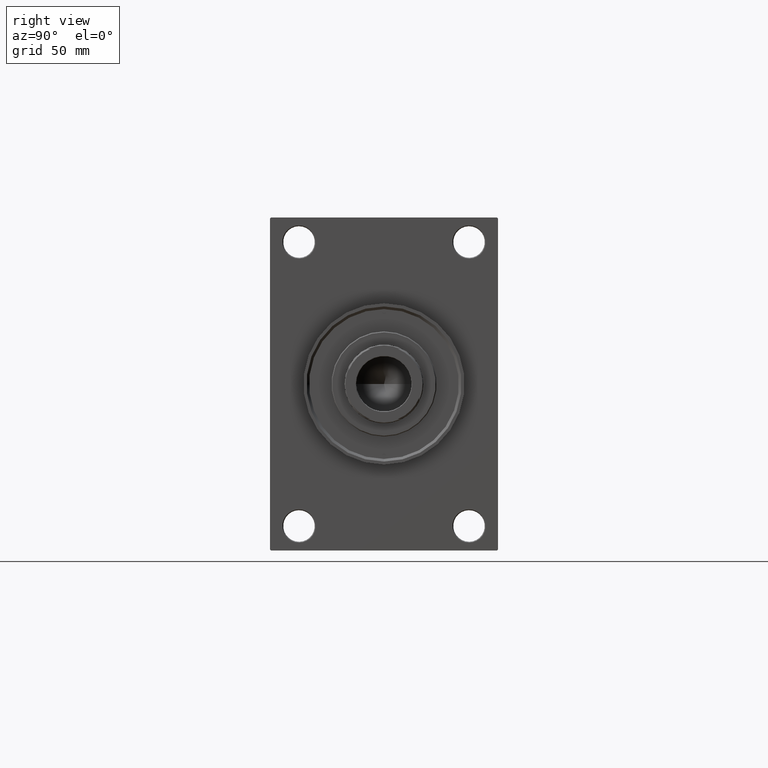
[diagram: clean part render]
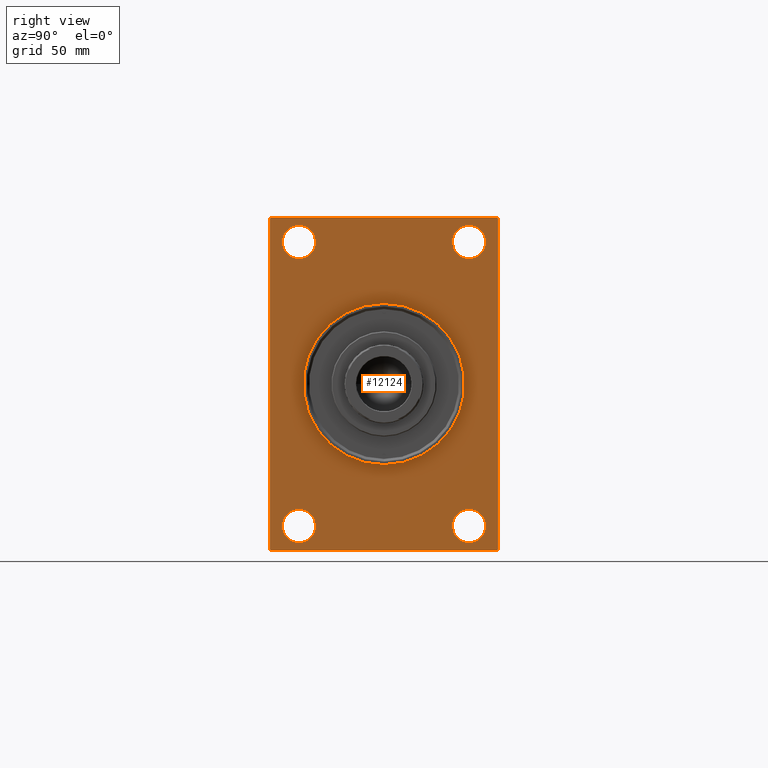
[diagram: same view with one face highlighted and labeled with its STEP entity id]
A machine part, right view. The second image highlights one B-rep face of the part: STEP entity #12124.
In plain terms, the highlighted planar face has unit normal (-1, 0, 0).
Its self-contained STEP definition (entity closure, byte-faithful):
#583 = EDGE_LOOP ( 'NONE', ( #40178, #6443, #46130, #1382, #5344, #7250, #45033, #41838 ) ) ;
#848 = VERTEX_POINT ( 'NONE', #24408 ) ;
#945 = DIRECTION ( 'NONE',  ( 0.000000000000000000, 0.000000000000000000, -1.000000000000000000 ) ) ;
#1382 = ORIENTED_EDGE ( 'NONE', *, *, #13155, .T. ) ;
#1439 = VERTEX_POINT ( 'NONE', #19240 ) ;
#1833 = CARTESIAN_POINT ( 'NONE',  ( 270.9999999999999432, -64.50000000000001421, -95.00000000000002842 ) ) ;
#1886 = CARTESIAN_POINT ( 'NONE',  ( 270.9999999999999432, 64.50000000000002842, 94.99999999999997158 ) ) ;
#1963 = CARTESIAN_POINT ( 'NONE',  ( 270.9999999999999432, -65.00000000000001421, -94.50000000000002842 ) ) ;
#2142 = AXIS2_PLACEMENT_3D ( 'NONE', #36860, #43428, #32505 ) ;
#2464 = CARTESIAN_POINT ( 'NONE',  ( 270.9999999999999432, 64.99999999999997158, 94.99999999999997158 ) ) ;
#2803 = EDGE_CURVE ( 'NONE', #15274, #1439, #11931, .T. ) ;
#2850 = EDGE_CURVE ( 'NONE', #848, #14485, #23918, .T. ) ;
#2956 = CARTESIAN_POINT ( 'NONE',  ( 270.9999999999999432, 48.50000000000000711, 90.49999999999990052 ) ) ;
#3544 = EDGE_LOOP ( 'NONE', ( #24941, #30678 ) ) ;
#3581 = DIRECTION ( 'NONE',  ( -1.000000000000000000, 0.000000000000000000, -0.000000000000000000 ) ) ;
#3598 = EDGE_CURVE ( 'NONE', #44810, #15594, #9250, .T. ) ;
#3735 = DIRECTION ( 'NONE',  ( 0.000000000000000000, 7.304098846218135653E-17, -1.000000000000000000 ) ) ;
#3815 = EDGE_LOOP ( 'NONE', ( #44579, #4313 ) ) ;
#4313 = ORIENTED_EDGE ( 'NONE', *, *, #12726, .T. ) ;
#4329 = VERTEX_POINT ( 'NONE', #4406 ) ;
#4406 = CARTESIAN_POINT ( 'NONE',  ( 270.9999999999999432, -48.49999999999999289, -71.50000000000011369 ) ) ;
#4637 = CARTESIAN_POINT ( 'NONE',  ( 270.9999999999999432, -64.50000000000001421, -95.00000000000002842 ) ) ;
#4922 = DIRECTION ( 'NONE',  ( -1.000000000000000000, 0.000000000000000000, -0.000000000000000000 ) ) ;
#4985 = DIRECTION ( 'NONE',  ( 0.000000000000000000, 0.000000000000000000, 1.000000000000000000 ) ) ;
#5034 = AXIS2_PLACEMENT_3D ( 'NONE', #31219, #23710, #19621 ) ;
#5239 = CIRCLE ( 'NONE', #6006, 9.499999999999896971 ) ;
#5341 = FACE_BOUND ( 'NONE', #3815, .T. ) ;
#5344 = ORIENTED_EDGE ( 'NONE', *, *, #2803, .F. ) ;
#5577 = EDGE_CURVE ( 'NONE', #25901, #25853, #38002, .T. ) ;
#5594 = LINE ( 'NONE', #27845, #47594 ) ;
#6006 = AXIS2_PLACEMENT_3D ( 'NONE', #29695, #3581, #29212 ) ;
#6045 = CARTESIAN_POINT ( 'NONE',  ( 270.9999999999999432, 48.50000000000000711, -71.50000000000011369 ) ) ;
#6443 = ORIENTED_EDGE ( 'NONE', *, *, #12227, .T. ) ;
#6663 = CIRCLE ( 'NONE', #15930, 9.499999999999896971 ) ;
#7149 = ORIENTED_EDGE ( 'NONE', *, *, #35636, .T. ) ;
#7250 = ORIENTED_EDGE ( 'NONE', *, *, #16546, .T. ) ;
#7435 = DIRECTION ( 'NONE',  ( -1.000000000000000000, 0.000000000000000000, -0.000000000000000000 ) ) ;
#7444 = CARTESIAN_POINT ( 'NONE',  ( 270.9999999999999432, 0.000000000000000000, 46.00000000000000000 ) ) ;
#7753 = CARTESIAN_POINT ( 'NONE',  ( 270.9999999999999432, 5.633375276077824704E-15, -46.00000000000000000 ) ) ;
#8070 = CARTESIAN_POINT ( 'NONE',  ( 270.9999999999999432, 64.99999999999997158, 94.99999999999997158 ) ) ;
#8261 = FACE_BOUND ( 'NONE', #15579, .T. ) ;
#8501 = FACE_OUTER_BOUND ( 'NONE', #583, .T. ) ;
#8578 = CARTESIAN_POINT ( 'NONE',  ( 270.9999999999999432, 64.99999999999998579, -95.00000000000001421 ) ) ;
#8771 = LINE ( 'NONE', #45570, #31517 ) ;
#9050 = ORIENTED_EDGE ( 'NONE', *, *, #45094, .F. ) ;
#9250 = CIRCLE ( 'NONE', #45650, 9.499999999999896971 ) ;
#9429 = AXIS2_PLACEMENT_3D ( 'NONE', #28712, #13711, #31862 ) ;
#9513 = CARTESIAN_POINT ( 'NONE',  ( 270.9999999999999432, 48.50000000000000711, 81.00000000000000000 ) ) ;
#10104 = EDGE_CURVE ( 'NONE', #4329, #31691, #32574, .T. ) ;
#10569 = VECTOR ( 'NONE', #24609, 1000.000000000000000 ) ;
#10586 = VECTOR ( 'NONE', #17444, 1000.000000000000000 ) ;
#10842 = CARTESIAN_POINT ( 'NONE',  ( 270.9999999999999432, -48.50000000000000000, 81.00000000000000000 ) ) ;
#11200 = EDGE_CURVE ( 'NONE', #26857, #27272, #23331, .T. ) ;
#11775 = DIRECTION ( 'NONE',  ( 0.000000000000000000, 0.000000000000000000, 1.000000000000000000 ) ) ;
#11931 = LINE ( 'NONE', #8070, #28558 ) ;
#11983 = ORIENTED_EDGE ( 'NONE', *, *, #10104, .T. ) ;
#12124 = ADVANCED_FACE ( 'NONE', ( #26631, #8261, #5341, #23474, #38267, #8501 ), #34621, .F. ) ;
#12170 = CARTESIAN_POINT ( 'NONE',  ( 270.9999999999999432, -48.49999999999999289, -90.49999999999991473 ) ) ;
#12227 = EDGE_CURVE ( 'NONE', #13140, #29181, #30733, .T. ) ;
#12493 = VECTOR ( 'NONE', #26701, 1000.000000000000000 ) ;
#12726 = EDGE_CURVE ( 'NONE', #15594, #44810, #43699, .T. ) ;
#12877 = CARTESIAN_POINT ( 'NONE',  ( 270.9999999999999432, -48.50000000000000000, 81.00000000000000000 ) ) ;
#12932 = AXIS2_PLACEMENT_3D ( 'NONE', #23189, #41611, #945 ) ;
#13116 = CARTESIAN_POINT ( 'NONE',  ( 270.9999999999999432, 64.99999999999997158, 94.49999999999997158 ) ) ;
#13140 = VERTEX_POINT ( 'NONE', #1963 ) ;
#13155 = EDGE_CURVE ( 'NONE', #45035, #1439, #5594, .T. ) ;
#13711 = DIRECTION ( 'NONE',  ( -1.000000000000000000, 0.000000000000000000, -0.000000000000000000 ) ) ;
#13858 = CARTESIAN_POINT ( 'NONE',  ( 270.9999999999999432, 48.50000000000000711, -90.49999999999991473 ) ) ;
#14485 = VERTEX_POINT ( 'NONE', #43324 ) ;
#15274 = VERTEX_POINT ( 'NONE', #13116 ) ;
#15579 = EDGE_LOOP ( 'NONE', ( #7149, #11983 ) ) ;
#15594 = VERTEX_POINT ( 'NONE', #6045 ) ;
#15853 = DIRECTION ( 'NONE',  ( -1.000000000000000000, 0.000000000000000000, -0.000000000000000000 ) ) ;
#15930 = AXIS2_PLACEMENT_3D ( 'NONE', #10842, #21032, #43780 ) ;
#16043 = CIRCLE ( 'NONE', #2142, 46.00000000000000000 ) ;
#16316 = AXIS2_PLACEMENT_3D ( 'NONE', #45886, #15853, #16332 ) ;
#16332 = DIRECTION ( 'NONE',  ( 0.000000000000000000, 0.000000000000000000, 1.000000000000000000 ) ) ;
#16546 = EDGE_CURVE ( 'NONE', #15274, #34999, #35037, .T. ) ;
#17444 = DIRECTION ( 'NONE',  ( 0.000000000000000000, -1.000000000000000000, 0.000000000000000000 ) ) ;
#18650 = VERTEX_POINT ( 'NONE', #7444 ) ;
#19240 = CARTESIAN_POINT ( 'NONE',  ( 270.9999999999999432, 64.99999999999998579, -94.49999999999991473 ) ) ;
#19482 = CARTESIAN_POINT ( 'NONE',  ( 270.9999999999999432, 48.50000000000000711, 71.50000000000009948 ) ) ;
#19621 = DIRECTION ( 'NONE',  ( -0.000000000000000000, 0.000000000000000000, 1.000000000000000000 ) ) ;
#20263 = CIRCLE ( 'NONE', #9429, 9.499999999999896971 ) ;
#21032 = DIRECTION ( 'NONE',  ( -1.000000000000000000, 0.000000000000000000, -0.000000000000000000 ) ) ;
#21474 = CIRCLE ( 'NONE', #12932, 46.00000000000000000 ) ;
#21576 = EDGE_CURVE ( 'NONE', #18650, #42203, #16043, .T. ) ;
#21944 = EDGE_CURVE ( 'NONE', #27272, #26857, #5239, .T. ) ;
#22043 = EDGE_LOOP ( 'NONE', ( #45751, #9050 ) ) ;
#22428 = CARTESIAN_POINT ( 'NONE',  ( 270.9999999999999432, 48.50000000000000711, -81.00000000000001421 ) ) ;
#22796 = AXIS2_PLACEMENT_3D ( 'NONE', #41326, #41100, #4985 ) ;
#23189 = CARTESIAN_POINT ( 'NONE',  ( 270.9999999999999432, 0.000000000000000000, 0.000000000000000000 ) ) ;
#23331 = CIRCLE ( 'NONE', #31833, 9.499999999999896971 ) ;
#23373 = EDGE_CURVE ( 'NONE', #25853, #13140, #8771, .T. ) ;
#23474 = FACE_BOUND ( 'NONE', #3544, .T. ) ;
#23710 = DIRECTION ( 'NONE',  ( -1.000000000000000000, 0.000000000000000000, -0.000000000000000000 ) ) ;
#23794 = CARTESIAN_POINT ( 'NONE',  ( 270.9999999999999432, 64.50000000000002842, 94.99999999999997158 ) ) ;
#23918 = CIRCLE ( 'NONE', #33990, 9.499999999999896971 ) ;
#24408 = CARTESIAN_POINT ( 'NONE',  ( 270.9999999999999432, -48.50000000000000000, 71.50000000000009948 ) ) ;
#24609 = DIRECTION ( 'NONE',  ( 0.000000000000000000, -0.7071067811865081598, 0.7071067811865868746 ) ) ;
#24941 = ORIENTED_EDGE ( 'NONE', *, *, #21944, .T. ) ;
#25853 = VERTEX_POINT ( 'NONE', #47913 ) ;
#25901 = VERTEX_POINT ( 'NONE', #36543 ) ;
#26631 = FACE_BOUND ( 'NONE', #32392, .T. ) ;
#26701 = DIRECTION ( 'NONE',  ( 0.000000000000000000, -1.000000000000000000, -1.067522139062650425E-16 ) ) ;
#26857 = VERTEX_POINT ( 'NONE', #2956 ) ;
#27272 = VERTEX_POINT ( 'NONE', #19482 ) ;
#27586 = DIRECTION ( 'NONE',  ( 0.000000000000000000, 0.7071067811865474617, -0.7071067811865474617 ) ) ;
#27845 = CARTESIAN_POINT ( 'NONE',  ( 270.9999999999999432, 64.99999999999998579, -94.49999999999991473 ) ) ;
#28558 = VECTOR ( 'NONE', #3735, 1000.000000000000000 ) ;
#28712 = CARTESIAN_POINT ( 'NONE',  ( 270.9999999999999432, -48.49999999999999289, -81.00000000000001421 ) ) ;
#29181 = VERTEX_POINT ( 'NONE', #1833 ) ;
#29212 = DIRECTION ( 'NONE',  ( 0.000000000000000000, 0.000000000000000000, 1.000000000000000000 ) ) ;
#29502 = CARTESIAN_POINT ( 'NONE',  ( 270.9999999999999432, 64.49999999999987210, -95.00000000000001421 ) ) ;
#29695 = CARTESIAN_POINT ( 'NONE',  ( 270.9999999999999432, 48.50000000000000711, 81.00000000000000000 ) ) ;
#30177 = VECTOR ( 'NONE', #38720, 1000.000000000000000 ) ;
#30346 = LINE ( 'NONE', #8578, #12493 ) ;
#30678 = ORIENTED_EDGE ( 'NONE', *, *, #11200, .T. ) ;
#30733 = LINE ( 'NONE', #4637, #39059 ) ;
#31078 = EDGE_CURVE ( 'NONE', #45035, #29181, #30346, .T. ) ;
#31219 = CARTESIAN_POINT ( 'NONE',  ( 270.9999999999999432, 0.000000000000000000, 0.000000000000000000 ) ) ;
#31512 = DIRECTION ( 'NONE',  ( 0.000000000000000000, 0.000000000000000000, 1.000000000000000000 ) ) ;
#31517 = VECTOR ( 'NONE', #41945, 1000.000000000000000 ) ;
#31691 = VERTEX_POINT ( 'NONE', #12170 ) ;
#31697 = ORIENTED_EDGE ( 'NONE', *, *, #2850, .T. ) ;
#31757 = DIRECTION ( 'NONE',  ( 0.000000000000000000, 0.000000000000000000, 1.000000000000000000 ) ) ;
#31833 = AXIS2_PLACEMENT_3D ( 'NONE', #9513, #4922, #31512 ) ;
#31862 = DIRECTION ( 'NONE',  ( 0.000000000000000000, 0.000000000000000000, 1.000000000000000000 ) ) ;
#31963 = LINE ( 'NONE', #2464, #10586 ) ;
#32392 = EDGE_LOOP ( 'NONE', ( #31697, #45294 ) ) ;
#32505 = DIRECTION ( 'NONE',  ( 0.000000000000000000, 0.000000000000000000, -1.000000000000000000 ) ) ;
#32574 = CIRCLE ( 'NONE', #16316, 9.499999999999896971 ) ;
#33990 = AXIS2_PLACEMENT_3D ( 'NONE', #12877, #38799, #31757 ) ;
#34621 = PLANE ( 'NONE',  #5034 ) ;
#34876 = DIRECTION ( 'NONE',  ( -0.000000000000000000, 0.7071067811865573427, 0.7071067811865378028 ) ) ;
#34999 = VERTEX_POINT ( 'NONE', #23794 ) ;
#35037 = LINE ( 'NONE', #1886, #10569 ) ;
#35636 = EDGE_CURVE ( 'NONE', #31691, #4329, #20263, .T. ) ;
#36543 = CARTESIAN_POINT ( 'NONE',  ( 270.9999999999999432, -64.50000000000002842, 94.99999999999997158 ) ) ;
#36860 = CARTESIAN_POINT ( 'NONE',  ( 270.9999999999999432, 0.000000000000000000, 0.000000000000000000 ) ) ;
#38002 = LINE ( 'NONE', #45045, #30177 ) ;
#38267 = FACE_BOUND ( 'NONE', #22043, .T. ) ;
#38720 = DIRECTION ( 'NONE',  ( -0.000000000000000000, -0.7071067811865378028, -0.7071067811865573427 ) ) ;
#38799 = DIRECTION ( 'NONE',  ( -1.000000000000000000, 0.000000000000000000, -0.000000000000000000 ) ) ;
#39059 = VECTOR ( 'NONE', #27586, 1000.000000000000114 ) ;
#40178 = ORIENTED_EDGE ( 'NONE', *, *, #23373, .T. ) ;
#41100 = DIRECTION ( 'NONE',  ( -1.000000000000000000, 0.000000000000000000, -0.000000000000000000 ) ) ;
#41326 = CARTESIAN_POINT ( 'NONE',  ( 270.9999999999999432, 48.50000000000000711, -81.00000000000001421 ) ) ;
#41611 = DIRECTION ( 'NONE',  ( 1.000000000000000000, 0.000000000000000000, 0.000000000000000000 ) ) ;
#41838 = ORIENTED_EDGE ( 'NONE', *, *, #5577, .T. ) ;
#41945 = DIRECTION ( 'NONE',  ( 0.000000000000000000, 0.000000000000000000, -1.000000000000000000 ) ) ;
#42076 = EDGE_CURVE ( 'NONE', #14485, #848, #6663, .T. ) ;
#42203 = VERTEX_POINT ( 'NONE', #7753 ) ;
#43324 = CARTESIAN_POINT ( 'NONE',  ( 270.9999999999999432, -48.50000000000000000, 90.49999999999990052 ) ) ;
#43428 = DIRECTION ( 'NONE',  ( 1.000000000000000000, 0.000000000000000000, 0.000000000000000000 ) ) ;
#43699 = CIRCLE ( 'NONE', #22796, 9.499999999999896971 ) ;
#43780 = DIRECTION ( 'NONE',  ( 0.000000000000000000, 0.000000000000000000, 1.000000000000000000 ) ) ;
#44579 = ORIENTED_EDGE ( 'NONE', *, *, #3598, .T. ) ;
#44601 = EDGE_CURVE ( 'NONE', #34999, #25901, #31963, .T. ) ;
#44810 = VERTEX_POINT ( 'NONE', #13858 ) ;
#45033 = ORIENTED_EDGE ( 'NONE', *, *, #44601, .T. ) ;
#45035 = VERTEX_POINT ( 'NONE', #29502 ) ;
#45045 = CARTESIAN_POINT ( 'NONE',  ( 270.9999999999999432, -65.00000000000001421, 94.49999999999997158 ) ) ;
#45094 = EDGE_CURVE ( 'NONE', #42203, #18650, #21474, .T. ) ;
#45294 = ORIENTED_EDGE ( 'NONE', *, *, #42076, .T. ) ;
#45570 = CARTESIAN_POINT ( 'NONE',  ( 270.9999999999999432, -65.00000000000001421, 94.99999999999997158 ) ) ;
#45650 = AXIS2_PLACEMENT_3D ( 'NONE', #22428, #7435, #11775 ) ;
#45751 = ORIENTED_EDGE ( 'NONE', *, *, #21576, .F. ) ;
#45886 = CARTESIAN_POINT ( 'NONE',  ( 270.9999999999999432, -48.49999999999999289, -81.00000000000001421 ) ) ;
#46130 = ORIENTED_EDGE ( 'NONE', *, *, #31078, .F. ) ;
#47594 = VECTOR ( 'NONE', #34876, 1000.000000000000000 ) ;
#47913 = CARTESIAN_POINT ( 'NONE',  ( 270.9999999999999432, -65.00000000000001421, 94.49999999999997158 ) ) ;